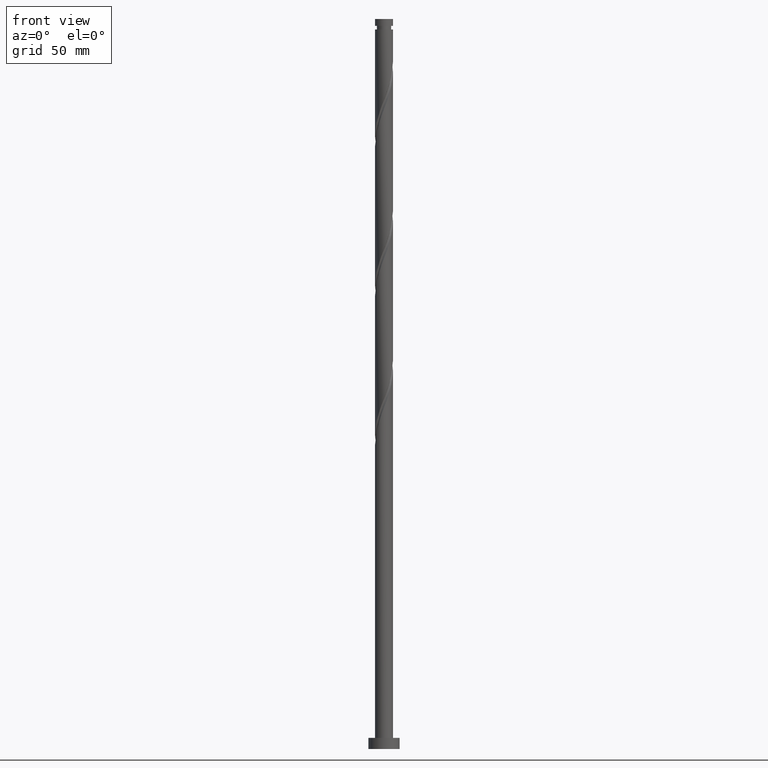
[diagram: clean part render]
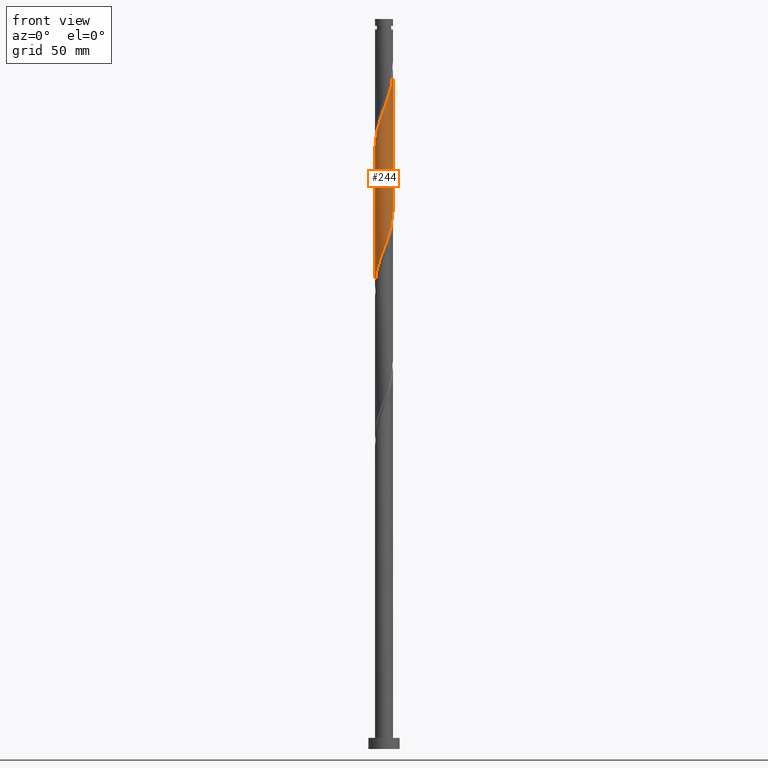
[diagram: same view with one face highlighted and labeled with its STEP entity id]
A machine part, front view. The second image highlights one B-rep face of the part: STEP entity #244.
In plain terms, the highlighted cylindrical surface (edge-blend (fillet) strip) has radius 4 mm, axis along (-0, -0, -1).
Its self-contained STEP definition (entity closure, byte-faithful):
#5 = CARTESIAN_POINT ( 'NONE',  ( -0.4568176844692873884, -3.996006507438230049, 284.6417134095798929 ) ) ;
#13 = CARTESIAN_POINT ( 'NONE',  ( -3.689051991364082017, -1.602387534070728092, 273.5306022984688070 ) ) ;
#90 = DIRECTION ( 'NONE',  ( -0.000000000000000000, -0.000000000000000000, -1.000000000000000000 ) ) ;
#104 = CARTESIAN_POINT ( 'NONE',  ( 0.8672346379929689597, -3.904856474016070056, 225.7528245206910356 ) ) ;
#130 = CARTESIAN_POINT ( 'NONE',  ( 3.999999999999999112, 4.858235011716200766E-15, 240.1004899864347806 ) ) ;
#141 = CARTESIAN_POINT ( 'NONE',  ( -4.000000000000005329, 1.793809850479816147E-16, 269.1829368327250336 ) ) ;
#144 = CARTESIAN_POINT ( 'NONE',  ( -1.660148792339432244, -3.639217771347842856, 281.3083800762465216 ) ) ;
#164 = CARTESIAN_POINT ( 'NONE',  ( 3.792814557677652409, -1.270652482415439044, 299.0861578540243499 ) ) ;
#176 = CARTESIAN_POINT ( 'NONE',  ( 0.7959899496852976819, -3.920000000000005258, 287.9750467429133209 ) ) ;
#178 = CARTESIAN_POINT ( 'NONE',  ( -3.999999999999999112, 4.738647688350878605E-15, 206.7671566531013809 ) ) ;
#186 = CARTESIAN_POINT ( 'NONE',  ( -3.275282252781098524, -2.334368558936170679, 275.7528245206909219 ) ) ;
#200 = EDGE_LOOP ( 'NONE', ( #1007, #1814, #1551, #1489 ) ) ;
#212 = CARTESIAN_POINT ( 'NONE',  ( 3.482167122072584942, -1.968378046503447942, 234.6417134095798929 ) ) ;
#223 = CARTESIAN_POINT ( 'NONE',  ( 2.042645993162201190, -3.464729102101767211, 229.0861578540243215 ) ) ;
#244 = ADVANCED_FACE ( 'NONE', ( #799 ), #1559, .T. ) ;
#281 = CARTESIAN_POINT ( 'NONE',  ( -1.979220423070277013, -3.501347872067846367, 217.9750467429131788 ) ) ;
#292 = CARTESIAN_POINT ( 'NONE',  ( 0.4568176844692852789, -3.996006507438224276, 224.6417134095798644 ) ) ;
#311 = CARTESIAN_POINT ( 'NONE',  ( 2.663940864372332129, -3.013331955736003209, 293.5306022984687502 ) ) ;
#313 = CARTESIAN_POINT ( 'NONE',  ( 4.000000000000000000, 4.898587196589412829E-16, 326.0000000000000000 ) ) ;
#338 = VERTEX_POINT ( 'NONE', #130 ) ;
#340 = CARTESIAN_POINT ( 'NONE',  ( 4.000000000000007105, -1.524738372907843749E-15, 302.5162701660584048 ) ) ;
#347 = VERTEX_POINT ( 'NONE', #141 ) ;
#373 = CARTESIAN_POINT ( 'NONE',  ( 2.718366963203605824, -2.964326476232961749, 231.3083800762465501 ) ) ;
#404 = CARTESIAN_POINT ( 'NONE',  ( 3.999999999999999112, 4.858235011716200766E-15, 240.1004899864347806 ) ) ;
#433 = CARTESIAN_POINT ( 'NONE',  ( -4.000000000000007105, -0.1913759971469878030, 269.6914853582890714 ) ) ;
#457 = CARTESIAN_POINT ( 'NONE',  ( -3.792814557677647969, -1.270652482415433715, 210.1972689651354642 ) ) ;
#465 = CARTESIAN_POINT ( 'NONE',  ( -2.042645993162207407, -3.464729102101771208, 280.1972689651353789 ) ) ;
#479 = CARTESIAN_POINT ( 'NONE',  ( -3.482167122072591159, -1.968378046503449275, 274.6417134095798929 ) ) ;
#480 =( BOUNDED_CURVE ( )  B_SPLINE_CURVE ( 2, ( #404, #1311, #1189, #1936, #713, #1176, #212, #1148, #848, #373, #1002, #223, #606, #1044, #104, #292, #1233, #1371, #620, #578, #1509, #281, #1243, #1657, #744, #1198, #1209, #1840, #457, #1083, #1435, #1576, #178 ),
 .UNSPECIFIED., .F., .T. ) 
 B_SPLINE_CURVE_WITH_KNOTS ( ( 3, 2, 2, 2, 2, 2, 2, 2, 2, 2, 2, 2, 2, 2, 2, 2, 3 ),
 ( 0.5545286012773114059, 0.5583333333333333481, 0.5666666666666666519, 0.5749999999999999556, 0.5833333333333333703, 0.5916666666666666741, 0.5999999999999999778, 0.6083333333333332815, 0.6166666666666666963, 0.6250000000000000000, 0.6333333333333333037, 0.6416666666666667185, 0.6500000000000000222, 0.6583333333333333259, 0.6666666666666666297, 0.6750000000000000444, 0.6795286012773116280 ),
 .UNSPECIFIED. ) 
 CURVE ( )  GEOMETRIC_REPRESENTATION_ITEM ( )  RATIONAL_B_SPLINE_CURVE ( ( 0.9066196499552254817, 0.9068171577856382060, 0.9090909090909370383, 0.9041108139711855340, 0.9090909090909370383, 0.9041108139711855340, 0.9090909090909370383, 0.9041108139711855340, 0.9090909090909370383, 0.9041108139711855340, 0.9090909090909370383, 0.9041108139711855340, 0.9090909090909370383, 0.9041108139711855340, 0.9090909090909370383, 0.9041108139711855340, 0.9090909090909370383, 0.9041108139711855340, 0.9090909090909370383, 0.9041108139711855340, 0.9090909090909370383, 0.9041108139711855340, 0.9090909090909370383, 0.9041108139711855340, 0.9090909090909370383, 0.9041108139711855340, 0.9090909090909370383, 0.9041108139711855340, 0.9090909090909370383, 0.9041108139711855340, 0.9090909090909370383, 0.9063845652764842553, 0.9066196499552254817 ) ) 
 REPRESENTATION_ITEM ( '' )  );
#578 = CARTESIAN_POINT ( 'NONE',  ( -1.207998551926750652, -3.836338085059161518, 220.1972689651354642 ) ) ;
#594 = CARTESIAN_POINT ( 'NONE',  ( -3.981729436060737815, -0.3818778574459164021, 270.1972689651354358 ) ) ;
#602 = AXIS2_PLACEMENT_3D ( 'NONE', #1058, #790, #769 ) ;
#606 = CARTESIAN_POINT ( 'NONE',  ( 1.660148792339428692, -3.639217771347840191, 227.9750467429132357 ) ) ;
#617 = LINE ( 'NONE', #1040, #1124 ) ;
#620 = CARTESIAN_POINT ( 'NONE',  ( -0.7959899496852983480, -3.919999999999999929, 221.3083800762465501 ) ) ;
#629 = CARTESIAN_POINT ( 'NONE',  ( 0.3839813474438448226, -4.003661914940843225, 286.8639356318019509 ) ) ;
#640 = CARTESIAN_POINT ( 'NONE',  ( 4.000000000000004441, -0.2278949497857418738, 301.9106788566737691 ) ) ;
#651 = DIRECTION ( 'NONE',  ( -0.000000000000000000, -0.000000000000000000, -1.000000000000000000 ) ) ;
#660 = CARTESIAN_POINT ( 'NONE',  ( 1.207998551926748876, -3.836338085059167291, 289.0861578540243499 ) ) ;
#674 = VERTEX_POINT ( 'NONE', #960 ) ;
#682 = VERTEX_POINT ( 'NONE', #1869 ) ;
#713 = CARTESIAN_POINT ( 'NONE',  ( 3.815322223626529397, -1.201381009464323579, 236.8639356318021498 ) ) ;
#744 = CARTESIAN_POINT ( 'NONE',  ( -2.948087585633560437, -2.703475464551747365, 214.6417134095799213 ) ) ;
#769 = DIRECTION ( 'NONE',  ( -1.000000000000000000, 0.000000000000000000, 0.000000000000000000 ) ) ;
#790 = DIRECTION ( 'NONE',  ( -0.000000000000000000, -0.000000000000000000, -1.000000000000000000 ) ) ;
#794 = CARTESIAN_POINT ( 'NONE',  ( -3.941592455888989655, -0.8003744848579138482, 271.3083800762465216 ) ) ;
#799 = FACE_OUTER_BOUND ( 'NONE', #200, .T. ) ;
#802 = CARTESIAN_POINT ( 'NONE',  ( 3.926365515130359807, -0.8720116088262054310, 300.1972689651353221 ) ) ;
#811 = CARTESIAN_POINT ( 'NONE',  ( 1.593609487498513833, -3.668842978563509938, 290.1972689651354926 ) ) ;
#848 = CARTESIAN_POINT ( 'NONE',  ( 2.996824607992349065, -2.649347517584566436, 232.4194911873576359 ) ) ;
#960 = CARTESIAN_POINT ( 'NONE',  ( 4.000000000000007105, -1.524738372907843749E-15, 302.5162701660584048 ) ) ;
#1002 = CARTESIAN_POINT ( 'NONE',  ( 2.380506478182902619, -3.214527789167365146, 230.1972689651354926 ) ) ;
#1007 = ORIENTED_EDGE ( 'NONE', *, *, #1562, .F. ) ;
#1040 = CARTESIAN_POINT ( 'NONE',  ( -4.000000000000000000, 0.000000000000000000, 326.0000000000000000 ) ) ;
#1044 = CARTESIAN_POINT ( 'NONE',  ( 1.277651591516653973, -3.813706440593911839, 226.8639356318020930 ) ) ;
#1058 = CARTESIAN_POINT ( 'NONE',  ( 0.000000000000000000, 0.000000000000000000, 326.0000000000000000 ) ) ;
#1083 = CARTESIAN_POINT ( 'NONE',  ( -3.926365515130356698, -0.8720116088262001020, 209.0861578540243215 ) ) ;
#1093 = CARTESIAN_POINT ( 'NONE',  ( 2.948087585633562657, -2.703475464551751806, 294.6417134095798360 ) ) ;
#1111 = CARTESIAN_POINT ( 'NONE',  ( -0.8672346379929732896, -3.904856474016073165, 283.5306022984686365 ) ) ;
#1121 = CARTESIAN_POINT ( 'NONE',  ( 3.232234306894793185, -2.393618973367501734, 295.7528245206909787 ) ) ;
#1124 = VECTOR ( 'NONE', #90, 1000.000000000000000 ) ;
#1148 = CARTESIAN_POINT ( 'NONE',  ( 3.275282252781091863, -2.334368558936170679, 233.5306022984686933 ) ) ;
#1176 = CARTESIAN_POINT ( 'NONE',  ( 3.689051991364074468, -1.602387534070728536, 235.7528245206909787 ) ) ;
#1189 = CARTESIAN_POINT ( 'NONE',  ( 3.981729436060731153, -0.3818778574459192887, 239.0861578540244068 ) ) ;
#1198 = CARTESIAN_POINT ( 'NONE',  ( -3.232234306894790077, -2.393618973367496405, 213.5306022984687786 ) ) ;
#1209 = CARTESIAN_POINT ( 'NONE',  ( -3.445748953559866212, -2.031456164686082033, 212.4194911873576928 ) ) ;
#1233 = CARTESIAN_POINT ( 'NONE',  ( 0.03641816851271873628, -3.999834211189531086, 223.5306022984688070 ) ) ;
#1243 = CARTESIAN_POINT ( 'NONE',  ( -2.321580643721303794, -3.257339913901921680, 216.8639356318021214 ) ) ;
#1251 = CARTESIAN_POINT ( 'NONE',  ( 3.445748953559869321, -2.031456164686088695, 296.8639356318020646 ) ) ;
#1278 = CARTESIAN_POINT ( 'NONE',  ( 2.321580643721305126, -3.257339913901928341, 292.4194911873576075 ) ) ;
#1285 = CARTESIAN_POINT ( 'NONE',  ( -3.815322223626536058, -1.201381009464321359, 272.4194911873577212 ) ) ;
#1311 = CARTESIAN_POINT ( 'NONE',  ( 3.999999999999999112, -0.1913759971469969623, 239.5919414608706859 ) ) ;
#1368 = CARTESIAN_POINT ( 'NONE',  ( -4.000000000000005329, 1.793809850479816147E-16, 269.1829368327250336 ) ) ;
#1371 = CARTESIAN_POINT ( 'NONE',  ( -0.3839813474438479313, -4.003661914940837008, 222.4194911873576359 ) ) ;
#1379 =( BOUNDED_CURVE ( )  B_SPLINE_CURVE ( 2, ( #1368, #433, #594, #794, #1285, #13, #479, #186, #1871, #1402, #1849, #465, #144, #2008, #1111, #5, #1573, #629, #176, #660, #811, #1433, #1278, #311, #1093, #1121, #1251, #1731, #164, #802, #1704, #640, #340 ),
 .UNSPECIFIED., .F., .T. ) 
 B_SPLINE_CURVE_WITH_KNOTS ( ( 3, 2, 2, 2, 2, 2, 2, 2, 2, 2, 2, 2, 2, 2, 2, 2, 3 ),
 ( 0.5545286012773112949, 0.5583333333333333481, 0.5666666666666666519, 0.5749999999999999556, 0.5833333333333332593, 0.5916666666666666741, 0.5999999999999999778, 0.6083333333333333925, 0.6166666666666666963, 0.6250000000000000000, 0.6333333333333333037, 0.6416666666666666075, 0.6500000000000000222, 0.6583333333333333259, 0.6666666666666667407, 0.6750000000000000444, 0.6795286012773112949 ),
 .UNSPECIFIED. ) 
 CURVE ( )  GEOMETRIC_REPRESENTATION_ITEM ( )  RATIONAL_B_SPLINE_CURVE ( ( 0.9066196499552313659, 0.9068171577856439791, 0.9090909090909430335, 0.9041108139711913072, 0.9090909090909430335, 0.9041108139711913072, 0.9090909090909430335, 0.9041108139711913072, 0.9090909090909430335, 0.9041108139711913072, 0.9090909090909430335, 0.9041108139711913072, 0.9090909090909430335, 0.9041108139711913072, 0.9090909090909430335, 0.9041108139711913072, 0.9090909090909430335, 0.9041108139711913072, 0.9090909090909430335, 0.9041108139711913072, 0.9090909090909430335, 0.9041108139711913072, 0.9090909090909430335, 0.9041108139711913072, 0.9090909090909430335, 0.9041108139711913072, 0.9090909090909430335, 0.9041108139711913072, 0.9090909090909430335, 0.9041108139711913072, 0.9090909090909430335, 0.9063845652764903615, 0.9066196499552313659 ) ) 
 REPRESENTATION_ITEM ( '' )  );
#1398 = EDGE_CURVE ( 'NONE', #338, #682, #480, .T. ) ;
#1402 = CARTESIAN_POINT ( 'NONE',  ( -2.718366963203609821, -2.964326476232964414, 277.9750467429131504 ) ) ;
#1433 = CARTESIAN_POINT ( 'NONE',  ( 1.979220423070278345, -3.501347872067851696, 291.3083800762465216 ) ) ;
#1435 = CARTESIAN_POINT ( 'NONE',  ( -3.974115965681418672, -0.4543151893961394627, 207.9750467429132641 ) ) ;
#1489 = ORIENTED_EDGE ( 'NONE', *, *, #1398, .F. ) ;
#1509 = CARTESIAN_POINT ( 'NONE',  ( -1.593609487498514721, -3.668842978563503721, 219.0861578540244068 ) ) ;
#1551 = ORIENTED_EDGE ( 'NONE', *, *, #1684, .T. ) ;
#1559 = CYLINDRICAL_SURFACE ( 'NONE', #602, 4.000000000000000000 ) ;
#1562 = EDGE_CURVE ( 'NONE', #674, #338, #2011, .T. ) ;
#1572 = VECTOR ( 'NONE', #651, 1000.000000000000000 ) ;
#1573 = CARTESIAN_POINT ( 'NONE',  ( -0.03641816851272211553, -3.999834211189538191, 285.7528245206909787 ) ) ;
#1576 = CARTESIAN_POINT ( 'NONE',  ( -4.000000000000000888, -0.2278949497857223616, 207.3727479624859313 ) ) ;
#1657 = CARTESIAN_POINT ( 'NONE',  ( -2.663940864372329465, -3.013331955735995660, 215.7528245206910071 ) ) ;
#1684 = EDGE_CURVE ( 'NONE', #347, #682, #617, .T. ) ;
#1704 = CARTESIAN_POINT ( 'NONE',  ( 3.974115965681422669, -0.4543151893961415166, 301.3083800762465216 ) ) ;
#1731 = CARTESIAN_POINT ( 'NONE',  ( 3.659263600224944124, -1.669293356004672324, 297.9750467429132641 ) ) ;
#1787 = EDGE_CURVE ( 'NONE', #347, #674, #1379, .T. ) ;
#1814 = ORIENTED_EDGE ( 'NONE', *, *, #1787, .F. ) ;
#1840 = CARTESIAN_POINT ( 'NONE',  ( -3.659263600224941015, -1.669293356004668549, 211.3083800762465216 ) ) ;
#1849 = CARTESIAN_POINT ( 'NONE',  ( -2.380506478182908836, -3.214527789167367366, 279.0861578540243499 ) ) ;
#1869 = CARTESIAN_POINT ( 'NONE',  ( -3.999999999999999112, 4.738647688350878605E-15, 206.7671566531013809 ) ) ;
#1871 = CARTESIAN_POINT ( 'NONE',  ( -2.996824607992354839, -2.649347517584567768, 276.8639356318021782 ) ) ;
#1936 = CARTESIAN_POINT ( 'NONE',  ( 3.941592455888983437, -0.8003744848579144033, 237.9750467429132357 ) ) ;
#2008 = CARTESIAN_POINT ( 'NONE',  ( -1.277651591516658636, -3.813706440593915392, 282.4194911873576075 ) ) ;
#2011 = LINE ( 'NONE', #313, #1572 ) ;